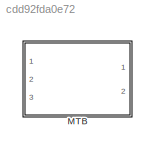
MODEL slx_cdd92fda0e72
KIND library
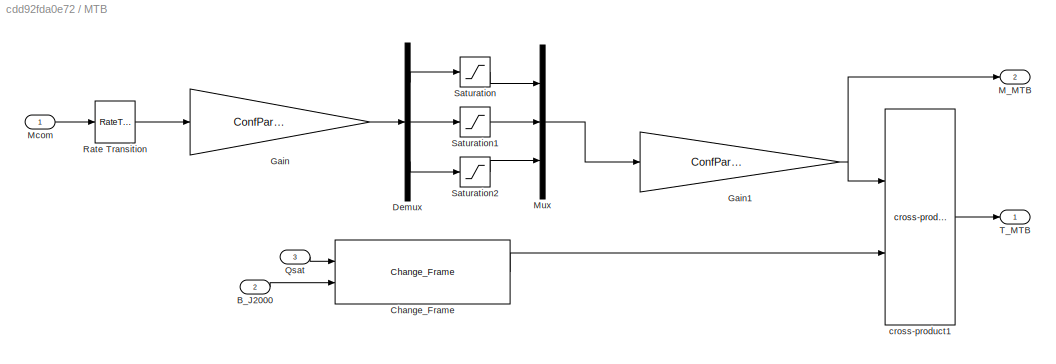
BLOCK [SubSystem] MTB
  Ports = [3, 2]
  RequestExecContextInheritance = off
BLOCK [Inport] MTB/B_J2000
  IconDisplay = Port number
  Port = 2
BLOCK [Reference] MTB/Change_Frame  REF=ChangeFrame/Change_Frame
  Ports = [2, 1]
  SourceBlock = ChangeFrame/Change_Frame
  SourceType = SubSystem
BLOCK [Demux] MTB/Demux
  DisplayOption = bar
  Outputs = 3
  Ports = [1, 3]
BLOCK [Gain] MTB/Gain
  Gain = ConfParam.confMTB.N_bf
  Multiplication = Matrix(K*u)
  OutDataTypeStr = Inherit: Inherit via internal rule
  ParamDataTypeStr = Inherit: Inherit via internal rule
  SaturateOnIntegerOverflow = off
BLOCK [Gain] MTB/Gain1
  Gain = ConfParam.confMTB.N_MTB
  Multiplication = Matrix(K*u)
  OutDataTypeStr = Inherit: Inherit via internal rule
  ParamDataTypeStr = Inherit: Inherit via internal rule
  SaturateOnIntegerOverflow = off
BLOCK [Outport] MTB/M_MTB
  IconDisplay = Port number
  Port = 2
BLOCK [Inport] MTB/Mcom
  IconDisplay = Port number
BLOCK [Mux] MTB/Mux
  DisplayOption = bar
  Inputs = 3
  Ports = [3, 1]
BLOCK [Inport] MTB/Qsat
  IconDisplay = Port number
  Port = 3
BLOCK [RateTransition] MTB/Rate Transition
  OutPortSampleTime = ConfParam.confOrbit.dt
  X0 = [0;0;0]
BLOCK [Saturate] MTB/Saturation
  InputPortMap = u0
  LowerLimit = -ConfParam.confMTB.M_max
  Ports = [1, 1]
  UpperLimit = ConfParam.confMTB.M_max
BLOCK [Saturate] MTB/Saturation1
  InputPortMap = u0
  LowerLimit = -ConfParam.confMTB.M_max
  Ports = [1, 1]
  UpperLimit = ConfParam.confMTB.M_max
BLOCK [Saturate] MTB/Saturation2
  InputPortMap = u0
  LowerLimit = -ConfParam.confMTB.M_max
  Ports = [1, 1]
  UpperLimit = ConfParam.confMTB.M_max
BLOCK [Outport] MTB/T_MTB
  IconDisplay = Port number
BLOCK [Reference] MTB/cross-product1  REF=CrossProd/cross-product
  Ports = [2, 1]
  SourceBlock = CrossProd/cross-product
  SourceType = SubSystem
LINE MTB/B_J2000:1 -> MTB/Change_Frame:2
LINE MTB/Change_Frame:1 -> MTB/cross-product1:2
LINE MTB/Demux:1 -> MTB/Saturation:1
LINE MTB/Demux:2 -> MTB/Saturation1:1
LINE MTB/Demux:3 -> MTB/Saturation2:1
NET MTB/Gain1:1 -> MTB/M_MTB:1, MTB/cross-product1:1
LINE MTB/Gain:1 -> MTB/Demux:1
LINE MTB/Mcom:1 -> MTB/Rate Transition:1
LINE MTB/Mux:1 -> MTB/Gain1:1
LINE MTB/Qsat:1 -> MTB/Change_Frame:1
LINE MTB/Rate Transition:1 -> MTB/Gain:1
LINE MTB/Saturation1:1 -> MTB/Mux:2
LINE MTB/Saturation2:1 -> MTB/Mux:3
LINE MTB/Saturation:1 -> MTB/Mux:1
LINE MTB/cross-product1:1 -> MTB/T_MTB:1
note: NET lines group one-source signal fan-out (src -> all destinations, sorted); 1:1 wires keep LINE
